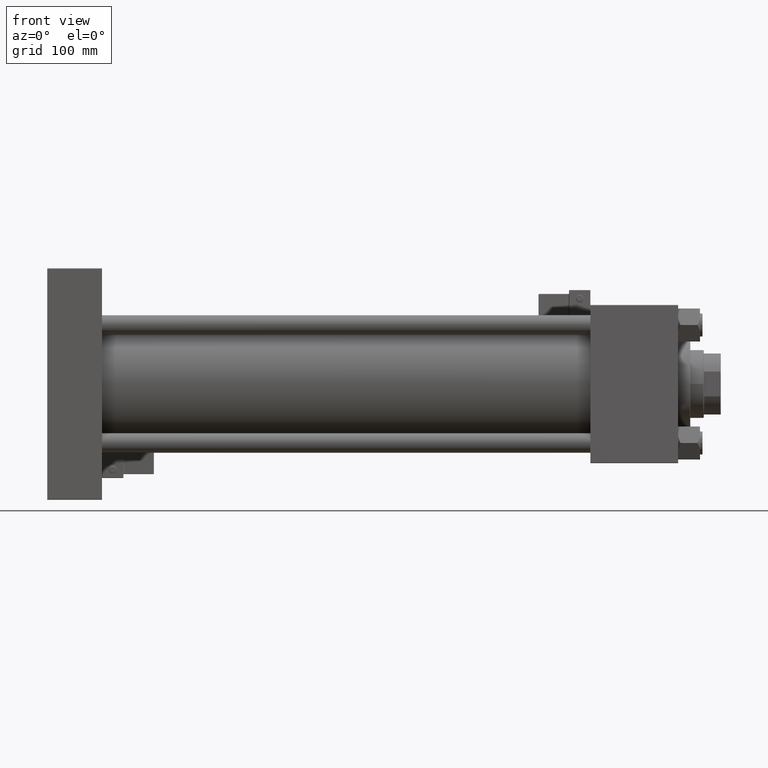
[diagram: clean part render]
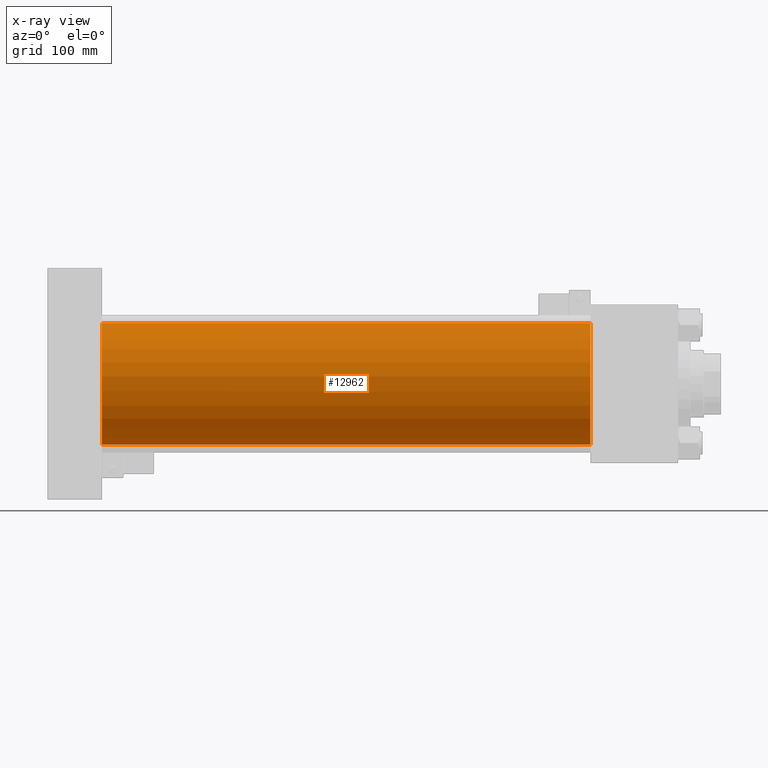
[diagram: x-ray — body ghosted, one internal face saturated and labeled with its STEP entity id]
A machine part, front view, then the same camera in x-ray: the body is ghosted and one INTERNAL B-rep face — a face not visible from any outside direction — is saturated and labeled: STEP entity #12962.
In plain terms, the highlighted cylindrical surface (partial cylindrical patch) has radius 50 mm, axis along (-1, -0, -0).
Its self-contained STEP definition (entity closure, byte-faithful):
#671 = LINE ( 'NONE', #5387, #35045 ) ;
#812 = DIRECTION ( 'NONE',  ( 1.000000000000000000, 0.000000000000000000, 0.000000000000000000 ) ) ;
#1702 = VERTEX_POINT ( 'NONE', #32069 ) ;
#1776 = CARTESIAN_POINT ( 'NONE',  ( 45.00000000000000000, -2.602085213965210642E-15, 50.00000000000000000 ) ) ;
#2732 = CARTESIAN_POINT ( 'NONE',  ( 446.0000000000000000, 3.521148781771554260E-15, -50.00000000000000000 ) ) ;
#2911 = EDGE_LOOP ( 'NONE', ( #44104, #51480, #14935, #52924 ) ) ;
#5049 = DIRECTION ( 'NONE',  ( 1.000000000000000000, 0.000000000000000000, 0.000000000000000000 ) ) ;
#5387 = CARTESIAN_POINT ( 'NONE',  ( 446.0000000000000000, -2.602085213965210642E-15, 50.00000000000000000 ) ) ;
#7328 = CARTESIAN_POINT ( 'NONE',  ( 45.00000000000000000, 3.521148781771554260E-15, -50.00000000000000000 ) ) ;
#11579 = DIRECTION ( 'NONE',  ( -1.000000000000000000, -0.000000000000000000, -0.000000000000000000 ) ) ;
#12962 = ADVANCED_FACE ( 'NONE', ( #32633 ), #54209, .F. ) ;
#13064 = CIRCLE ( 'NONE', #22807, 50.00000000000000000 ) ;
#13513 = AXIS2_PLACEMENT_3D ( 'NONE', #51790, #812, #42630 ) ;
#14288 = EDGE_CURVE ( 'NONE', #37298, #44243, #671, .T. ) ;
#14935 = ORIENTED_EDGE ( 'NONE', *, *, #37329, .F. ) ;
#16191 = CIRCLE ( 'NONE', #13513, 50.00000000000000000 ) ;
#19459 = EDGE_CURVE ( 'NONE', #37298, #1702, #16191, .T. ) ;
#22807 = AXIS2_PLACEMENT_3D ( 'NONE', #34123, #5049, #51036 ) ;
#23519 = DIRECTION ( 'NONE',  ( -1.000000000000000000, -0.000000000000000000, -0.000000000000000000 ) ) ;
#24046 = DIRECTION ( 'NONE',  ( 0.000000000000000000, 0.000000000000000000, 1.000000000000000000 ) ) ;
#24994 = CARTESIAN_POINT ( 'NONE',  ( 446.0000000000000000, -2.602085213965210642E-15, 50.00000000000000000 ) ) ;
#29763 = DIRECTION ( 'NONE',  ( -1.000000000000000000, -0.000000000000000000, -0.000000000000000000 ) ) ;
#32069 = CARTESIAN_POINT ( 'NONE',  ( 446.0000000000000000, 3.521148781771554260E-15, -50.00000000000000000 ) ) ;
#32633 = FACE_OUTER_BOUND ( 'NONE', #2911, .T. ) ;
#33616 = VERTEX_POINT ( 'NONE', #7328 ) ;
#34123 = CARTESIAN_POINT ( 'NONE',  ( 45.00000000000000000, -2.602085213965210642E-15, 0.000000000000000000 ) ) ;
#35045 = VECTOR ( 'NONE', #29763, 1000.000000000000000 ) ;
#36975 = EDGE_CURVE ( 'NONE', #1702, #33616, #40683, .T. ) ;
#37298 = VERTEX_POINT ( 'NONE', #24994 ) ;
#37329 = EDGE_CURVE ( 'NONE', #44243, #33616, #13064, .T. ) ;
#40522 = VECTOR ( 'NONE', #23519, 1000.000000000000000 ) ;
#40683 = LINE ( 'NONE', #2732, #40522 ) ;
#42630 = DIRECTION ( 'NONE',  ( 0.000000000000000000, 0.000000000000000000, -1.000000000000000000 ) ) ;
#44002 = AXIS2_PLACEMENT_3D ( 'NONE', #45110, #11579, #24046 ) ;
#44104 = ORIENTED_EDGE ( 'NONE', *, *, #19459, .T. ) ;
#44243 = VERTEX_POINT ( 'NONE', #1776 ) ;
#45110 = CARTESIAN_POINT ( 'NONE',  ( 446.0000000000000000, -2.602085213965210642E-15, 0.000000000000000000 ) ) ;
#51036 = DIRECTION ( 'NONE',  ( 0.000000000000000000, 0.000000000000000000, -1.000000000000000000 ) ) ;
#51480 = ORIENTED_EDGE ( 'NONE', *, *, #36975, .T. ) ;
#51790 = CARTESIAN_POINT ( 'NONE',  ( 446.0000000000000000, -2.602085213965210642E-15, 0.000000000000000000 ) ) ;
#52924 = ORIENTED_EDGE ( 'NONE', *, *, #14288, .F. ) ;
#54209 = CYLINDRICAL_SURFACE ( 'NONE', #44002, 50.00000000000000000 ) ;